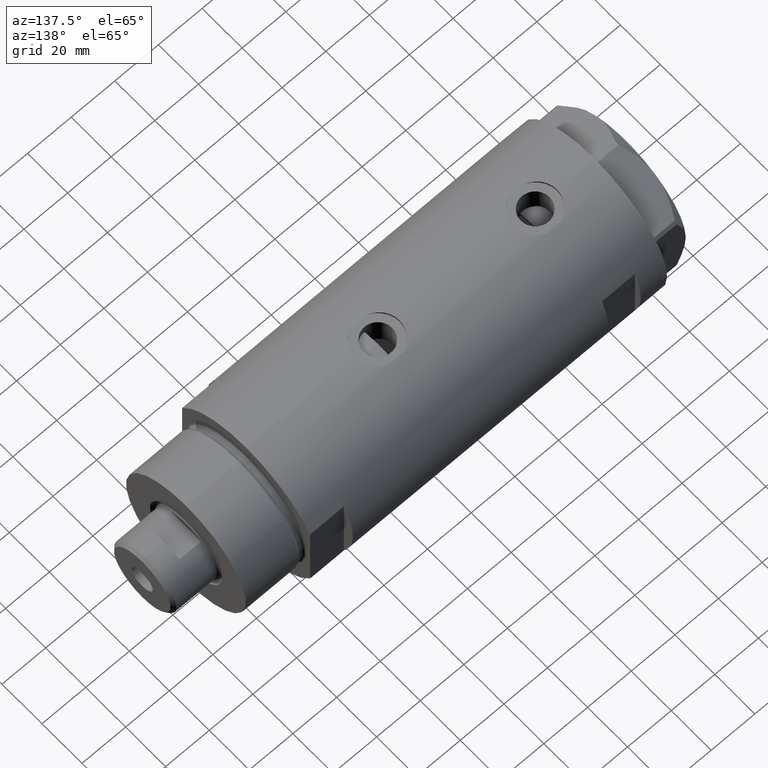
[diagram: clean part render]
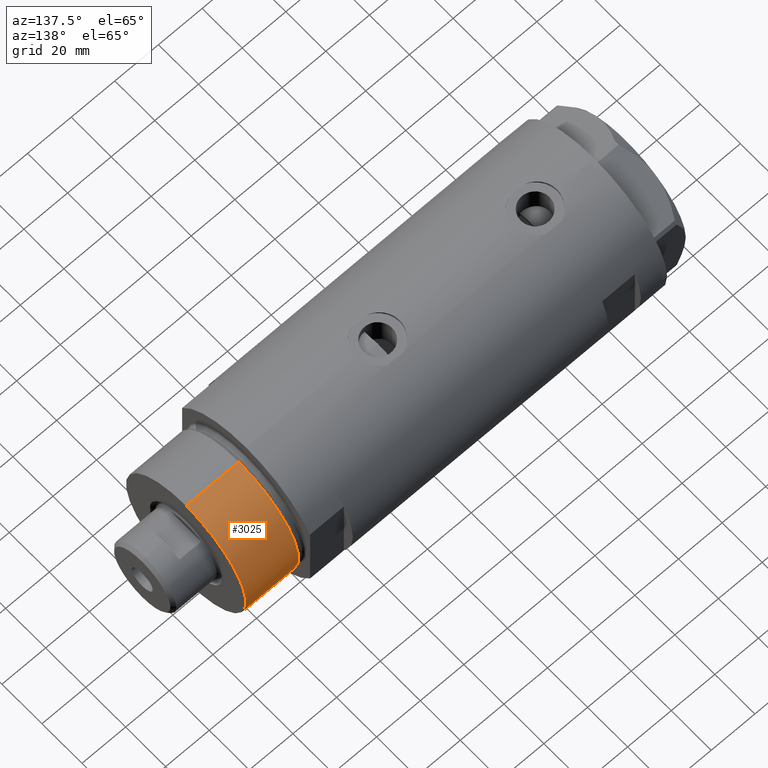
[diagram: same view with one face highlighted and labeled with its STEP entity id]
A machine part, auxiliary view. The second image highlights one B-rep face of the part: STEP entity #3025.
In plain terms, the highlighted cylindrical surface (partial cylindrical patch) has radius 30 mm, axis along (-1, -0, 0).
Its self-contained STEP definition (entity closure, byte-faithful):
#105 = CARTESIAN_POINT ( 'NONE',  ( -30.00000000000000000, 0.000000000000000000, 43.07000000000000028 ) ) ;
#278 = VERTEX_POINT ( 'NONE', #4576 ) ;
#369 = VECTOR ( 'NONE', #2510, 1000.000000000000000 ) ;
#370 = AXIS2_PLACEMENT_3D ( 'NONE', #3854, #4267, #4216 ) ;
#454 = VERTEX_POINT ( 'NONE', #998 ) ;
#464 = CARTESIAN_POINT ( 'NONE',  ( 0.000000000000000000, 0.000000000000000000, 43.07000000000000028 ) ) ;
#528 = EDGE_LOOP ( 'NONE', ( #592, #2844, #2186, #1972 ) ) ;
#592 = ORIENTED_EDGE ( 'NONE', *, *, #2243, .F. ) ;
#807 = VERTEX_POINT ( 'NONE', #105 ) ;
#833 = CYLINDRICAL_SURFACE ( 'NONE', #4160, 30.00000000000000000 ) ;
#885 = EDGE_CURVE ( 'NONE', #454, #278, #3232, .T. ) ;
#998 = CARTESIAN_POINT ( 'NONE',  ( 30.00000000000000000, 3.673940397442059178E-15, 18.87384048104053846 ) ) ;
#1227 = CARTESIAN_POINT ( 'NONE',  ( 0.000000000000000000, 0.000000000000000000, 43.07000000000000028 ) ) ;
#1250 = DIRECTION ( 'NONE',  ( -0.000000000000000000, -0.000000000000000000, -1.000000000000000000 ) ) ;
#1842 = DIRECTION ( 'NONE',  ( 1.000000000000000000, 0.000000000000000000, 0.000000000000000000 ) ) ;
#1972 = ORIENTED_EDGE ( 'NONE', *, *, #2549, .F. ) ;
#2186 = ORIENTED_EDGE ( 'NONE', *, *, #885, .T. ) ;
#2243 = EDGE_CURVE ( 'NONE', #2963, #807, #3168, .T. ) ;
#2326 = FACE_OUTER_BOUND ( 'NONE', #528, .T. ) ;
#2510 = DIRECTION ( 'NONE',  ( -0.000000000000000000, -0.000000000000000000, -1.000000000000000000 ) ) ;
#2549 = EDGE_CURVE ( 'NONE', #807, #278, #3216, .T. ) ;
#2844 = ORIENTED_EDGE ( 'NONE', *, *, #4287, .T. ) ;
#2963 = VERTEX_POINT ( 'NONE', #2985 ) ;
#2985 = CARTESIAN_POINT ( 'NONE',  ( 30.00000000000000000, 3.673940397442059178E-15, 43.07000000000000028 ) ) ;
#3025 = ADVANCED_FACE ( 'NONE', ( #2326 ), #833, .T. ) ;
#3042 = LINE ( 'NONE', #4511, #3061 ) ;
#3061 = VECTOR ( 'NONE', #4104, 1000.000000000000000 ) ;
#3129 = DIRECTION ( 'NONE',  ( -1.000000000000000000, 0.000000000000000000, 0.000000000000000000 ) ) ;
#3168 = CIRCLE ( 'NONE', #3769, 30.00000000000000000 ) ;
#3216 = LINE ( 'NONE', #4666, #369 ) ;
#3232 = CIRCLE ( 'NONE', #370, 30.00000000000000000 ) ;
#3769 = AXIS2_PLACEMENT_3D ( 'NONE', #464, #4115, #1842 ) ;
#3854 = CARTESIAN_POINT ( 'NONE',  ( 0.000000000000000000, 0.000000000000000000, 18.87384048104053846 ) ) ;
#4104 = DIRECTION ( 'NONE',  ( -0.000000000000000000, -0.000000000000000000, -1.000000000000000000 ) ) ;
#4115 = DIRECTION ( 'NONE',  ( 0.000000000000000000, 0.000000000000000000, 1.000000000000000000 ) ) ;
#4160 = AXIS2_PLACEMENT_3D ( 'NONE', #1227, #1250, #3129 ) ;
#4216 = DIRECTION ( 'NONE',  ( 1.000000000000000000, 0.000000000000000000, 0.000000000000000000 ) ) ;
#4267 = DIRECTION ( 'NONE',  ( -0.000000000000000000, -0.000000000000000000, 1.000000000000000000 ) ) ;
#4287 = EDGE_CURVE ( 'NONE', #2963, #454, #3042, .T. ) ;
#4511 = CARTESIAN_POINT ( 'NONE',  ( 30.00000000000000000, 3.673940397442059178E-15, 43.07000000000000028 ) ) ;
#4576 = CARTESIAN_POINT ( 'NONE',  ( -30.00000000000000000, 0.000000000000000000, 18.87384048104053846 ) ) ;
#4666 = CARTESIAN_POINT ( 'NONE',  ( -30.00000000000000000, 0.000000000000000000, 43.07000000000000028 ) ) ;